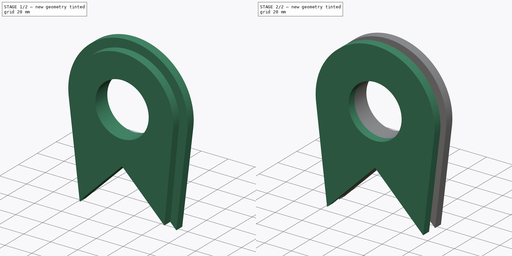
[diagram: build sequence overview — one tinted view per stage of 2, left to right]
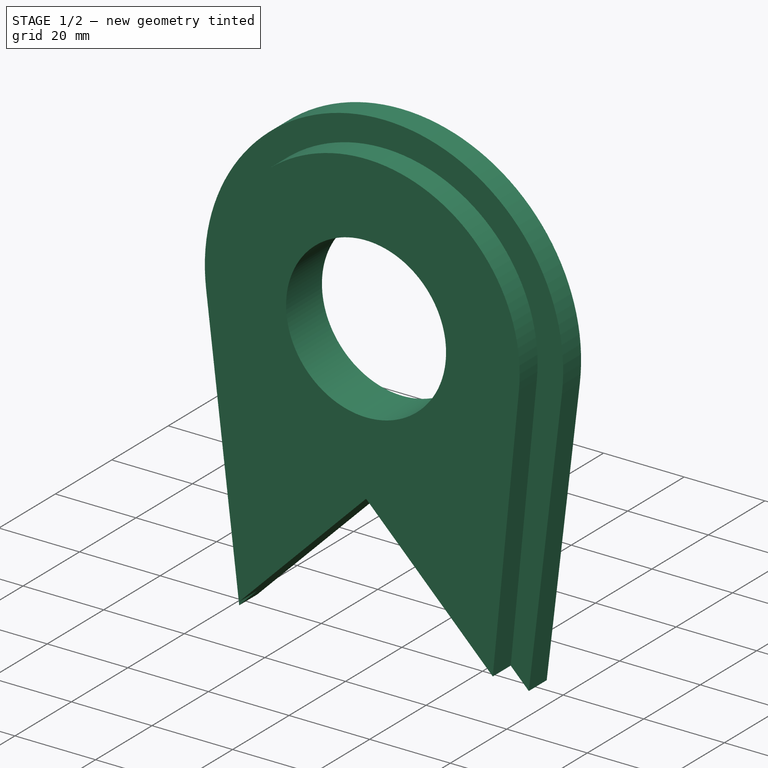
[diagram: stage 1 of 2 — iso view after this stage's code; geometry added in this stage tinted green]
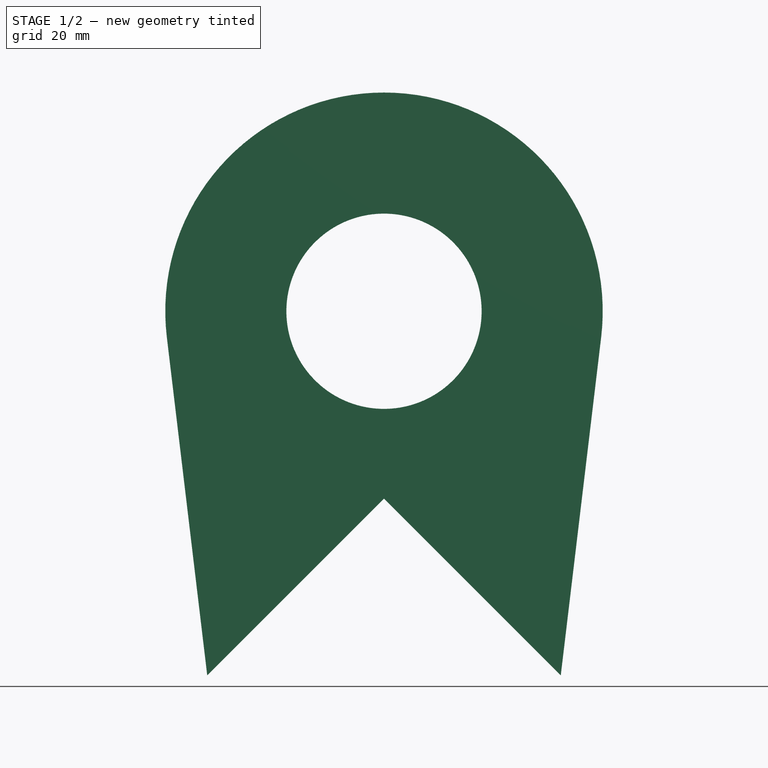
[diagram: stage 1 of 2 — front view after this stage's code; geometry added in this stage tinted green]
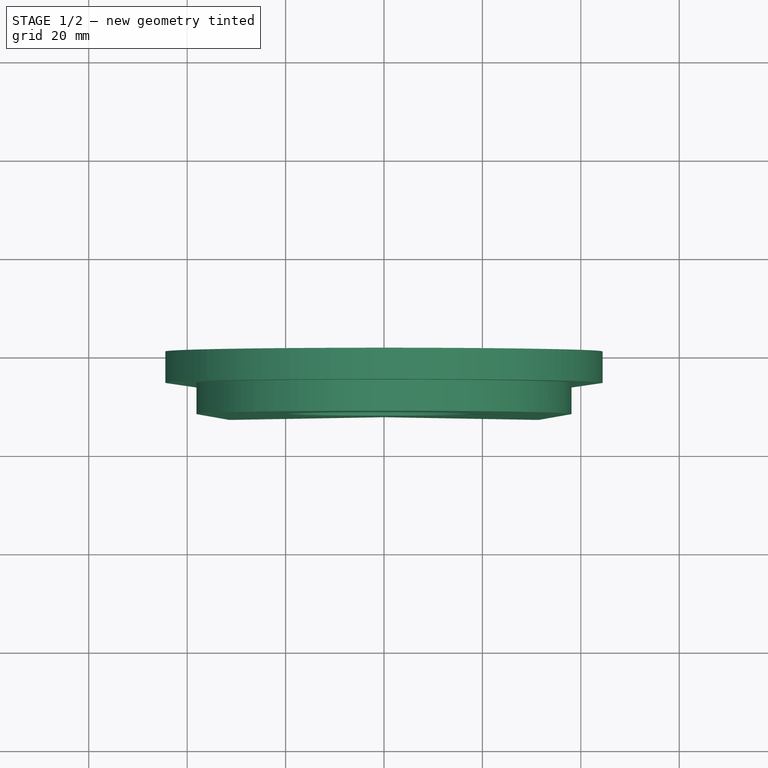
[diagram: stage 1 of 2 — top view after this stage's code; geometry added in this stage tinted green]
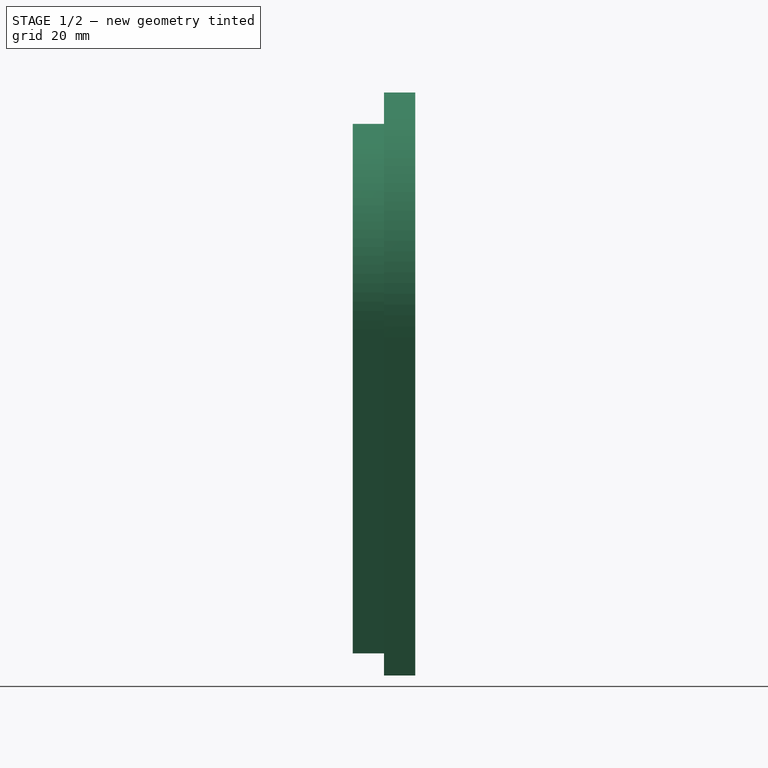
[diagram: stage 1 of 2 — right view after this stage's code; geometry added in this stage tinted green]
FCSTD DOCUMENT  (FreeCAD 0.17R13387 (Git))
Label: Cylinder rod mount
License: CreativeCommons Attribution
LicenseURL: http://creativecommons.org/licenses/by/4.0/
objects: Sketcher::SketchObject×2, PartDesign::Pad×2, PartDesign::Plane×1, PartDesign::LinearPattern×1, PartDesign::Body×1
note: 9 computed .brp shape members not serialized (recipe doc carries the construction recipe); baked Part::Feature solids carry a one-line shape summary decoded from their .brp

FEATURE [Sketcher::SketchObject] Sketch
  MapMode = 5
  Placement = pos=(0,0,0) rot=(1,0,0;1.5708rad)
  sketch-geometry (6):
    g0: ArcOfCircle CenterX=0 CenterY=38.1 CenterZ=0 NormalX=0 NormalY=0 NormalZ=1 AngleXU=0 Radius=44.45 StartAngle=6.16425 EndAngle=9.54371
    g1: Circle CenterX=0 CenterY=38.1 CenterZ=0 NormalX=0 NormalY=0 NormalZ=1 AngleXU=0 Radius=19.8438
    g2: LineSegment StartX=-35.921 StartY=-35.921 StartZ=0 EndX=0 EndY=0 EndZ=0
    g3: LineSegment StartX=0 StartY=0 StartZ=0 EndX=35.921 EndY=-35.921 EndZ=0
    g4: LineSegment StartX=35.921 StartY=-35.921 StartZ=0 EndX=44.136 EndY=32.8259 EndZ=0
    g5: LineSegment StartX=-44.136 StartY=32.8259 StartZ=0 EndX=-35.921 EndY=-35.921 EndZ=0
  constraints (15):
    c: Radius(g1) = 19.8438
    c: Coincident(g0,g1)
    c: PointOnObject(g0,g-2)
    c: Coincident(g2,g-1)
    c: Coincident(g2,g3)
    c: Coincident(g3,g4)
    c: Coincident(g5,g2)
    c: Perpendicular(g3,g2)
    c: Equal(g3,g2)
    c: Distance(g3) = 50.8
    c: DistanceY(g-1,g0) = 38.1
    c: Equal(g5,g4)
    c: Radius(g0) = 44.45
    c: Tangent(g5,g0) = -1.5708
    c: Tangent(g4,g0) = -1.5708
FEATURE [PartDesign::Pad] Pad
  Length = 6.35
  Length2 = 100.076
  Placement = pos=(0,0,0) rot=(1,0,0;1.5708rad)
  Profile = -> Sketch
  Type = 0
FEATURE [PartDesign::Plane] DatumPlane
  MapMode = 5
  Placement = pos=(0,-6.35,0) rot=(1,0,0;1.5708rad)
  Support = -> [Pad]
FEATURE [Sketcher::SketchObject] Sketch001
  MapMode = 5
  Placement = pos=(0,-6.35,0) rot=(1,0,0;1.5708rad)
  Support = -> [DatumPlane]
  sketch-geometry (6):
    g0: ArcOfCircle CenterX=0 CenterY=38.1 CenterZ=0 NormalX=0 NormalY=0 NormalZ=1 AngleXU=0 Radius=38.1 StartAngle=6.18493 EndAngle=9.52303
    g1: Circle CenterX=0 CenterY=38.1 CenterZ=0 NormalX=0 NormalY=0 NormalZ=1 AngleXU=0 Radius=19.8438
    g2: LineSegment StartX=-31.4309 StartY=-31.4309 StartZ=0 EndX=0 EndY=0 EndZ=0
    g3: LineSegment StartX=0 StartY=0 StartZ=0 EndX=31.4309 EndY=-31.4309 EndZ=0
    g4: LineSegment StartX=31.4309 StartY=-31.4309 StartZ=0 EndX=37.9162 EndY=34.3625 EndZ=0
    g5: LineSegment StartX=-37.9162 StartY=34.3625 StartZ=0 EndX=-31.4309 EndY=-31.4309 EndZ=0
  constraints (15):
    c: Radius(g1) = 19.8438
    c: Coincident(g0,g1)
    c: PointOnObject(g0,g-2)
    c: Coincident(g2,g-1)
    c: Coincident(g2,g3)
    c: Coincident(g3,g4)
    c: Coincident(g5,g2)
    c: Perpendicular(g3,g2)
    c: Equal(g3,g2)
    c: Distance(g3) = 44.45
    c: DistanceY(g-1,g0) = 38.1
    c: Equal(g5,g4)
    c: Radius(g0) = 38.1
    c: Tangent(g5,g0) = -1.5708
    c: Tangent(g4,g0) = -1.5708
FEATURE [PartDesign::Pad] Pad001
  BaseFeature = -> Pad
  Length = 6.35
  Length2 = 100.076
  Placement = pos=(0,0,0) rot=(1,0,0;1.5708rad)
  Profile = -> Sketch001
  Type = 0
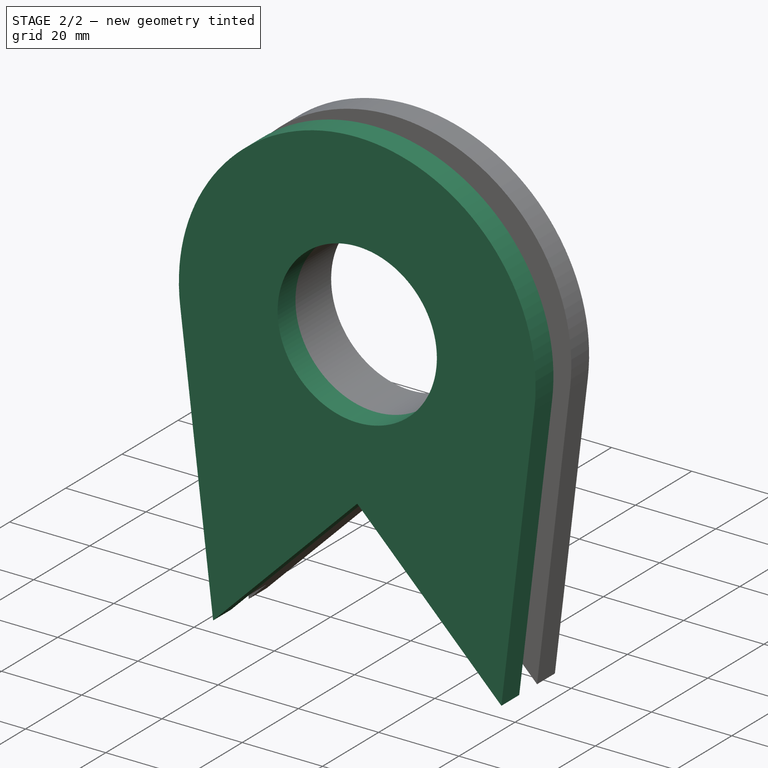
[diagram: stage 2 of 2 — iso view after this stage's code; geometry added in this stage tinted green]
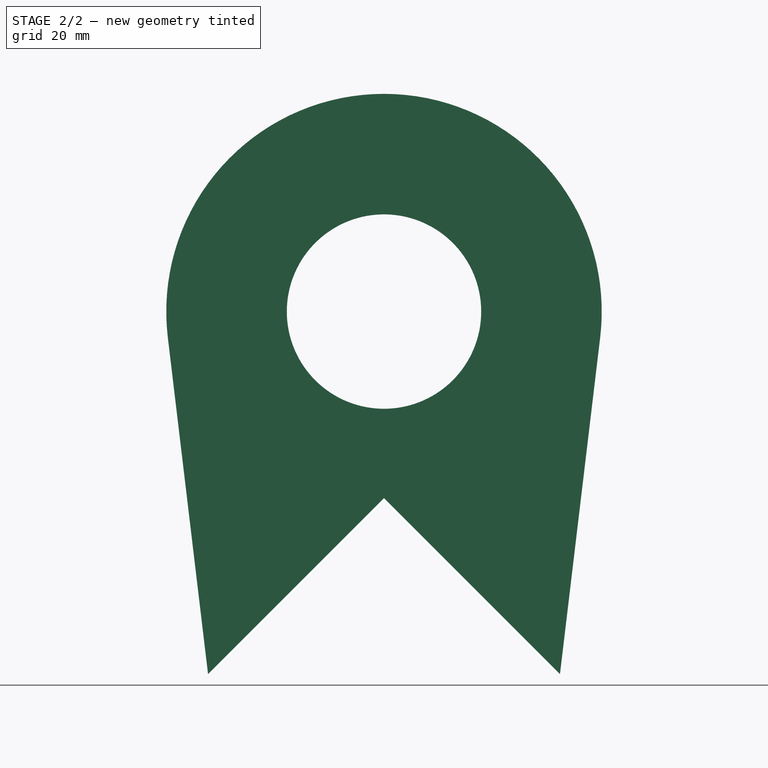
[diagram: stage 2 of 2 — front view after this stage's code; geometry added in this stage tinted green]
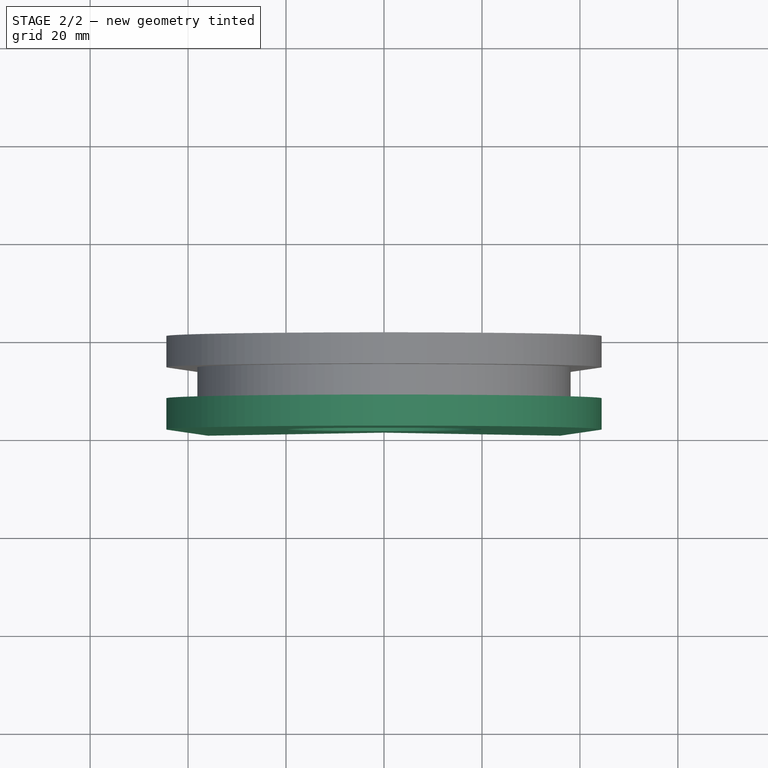
[diagram: stage 2 of 2 — top view after this stage's code; geometry added in this stage tinted green]
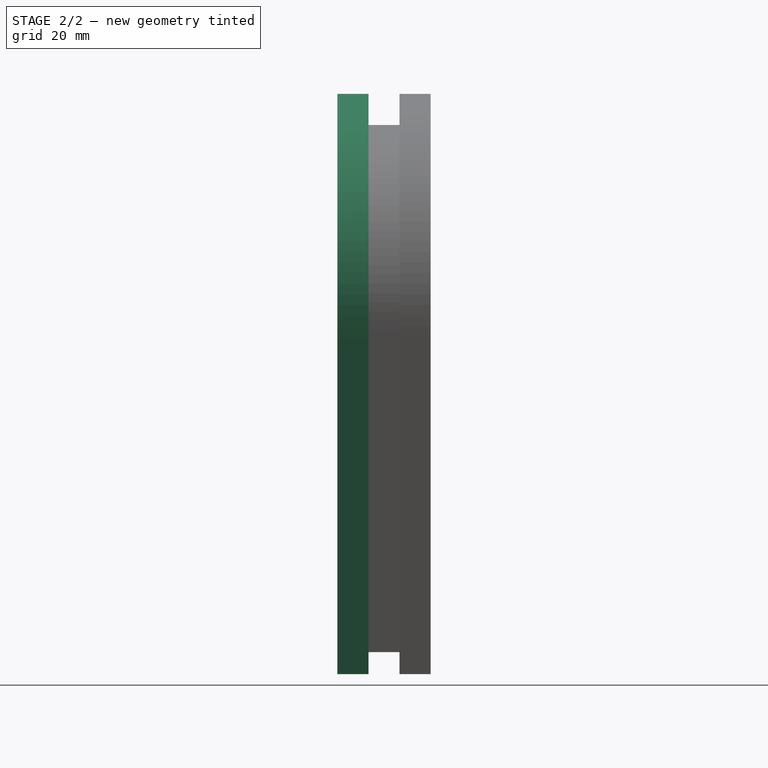
[diagram: stage 2 of 2 — right view after this stage's code; geometry added in this stage tinted green]
FEATURE [PartDesign::LinearPattern] LinearPattern
  BaseFeature = -> Pad001
  Direction = -> Y_Axis
  Length = 12.7
  Occurrences = 2
  Originals = -> [Pad]
  Placement = pos=(0,0,0) rot=(1,0,0;1.5708rad)
  Reversed = true
FEATURE [PartDesign::Body] Body
  Group = -> [Sketch,Pad,DatumPlane,Sketch001,Pad001,LinearPattern]
  Origin = -> Origin
  Tip = -> LinearPattern
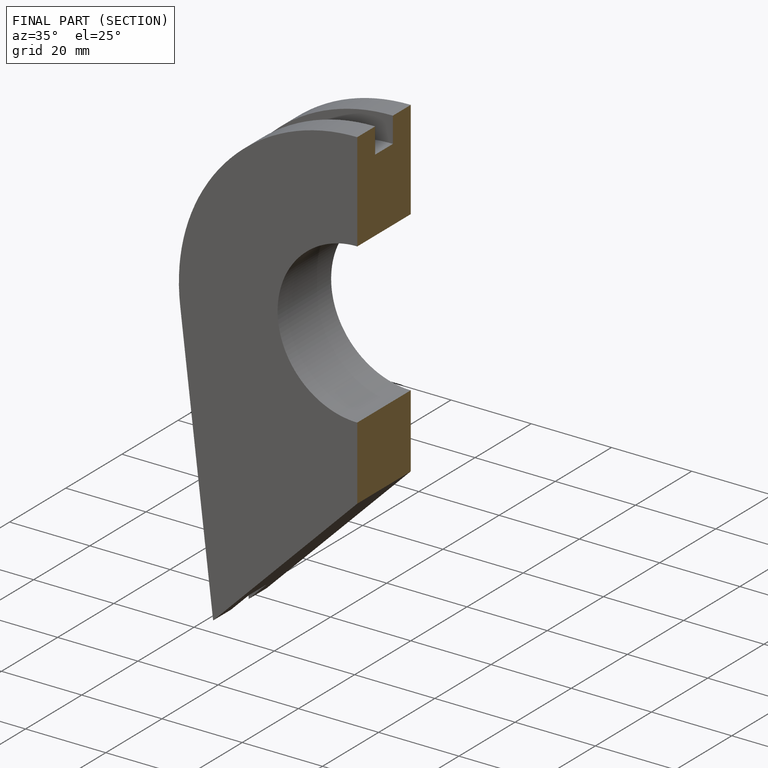
[diagram: finished part — half-section view (interior)]
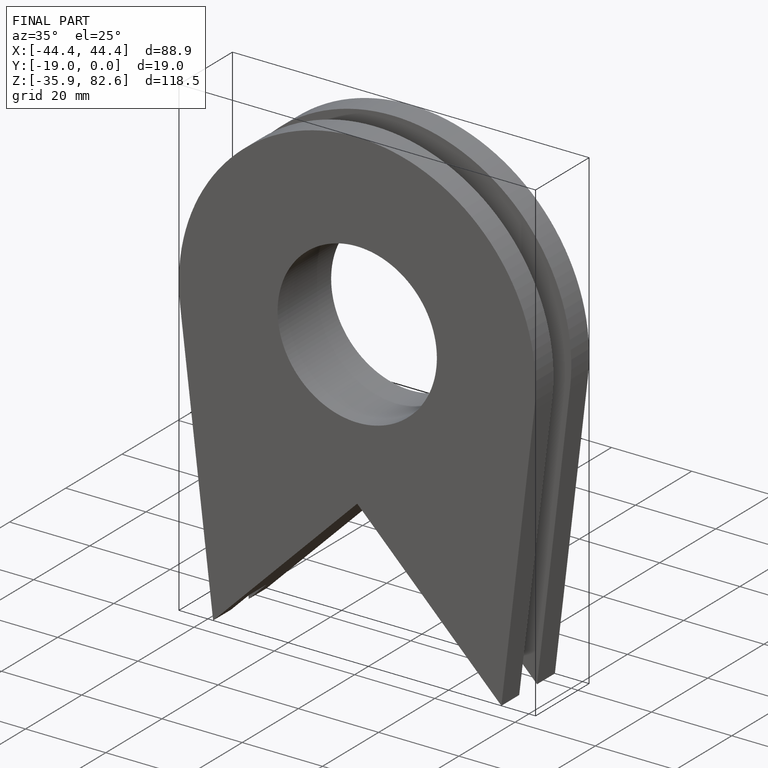
[diagram: finished part — iso view with bounding-box wireframe]
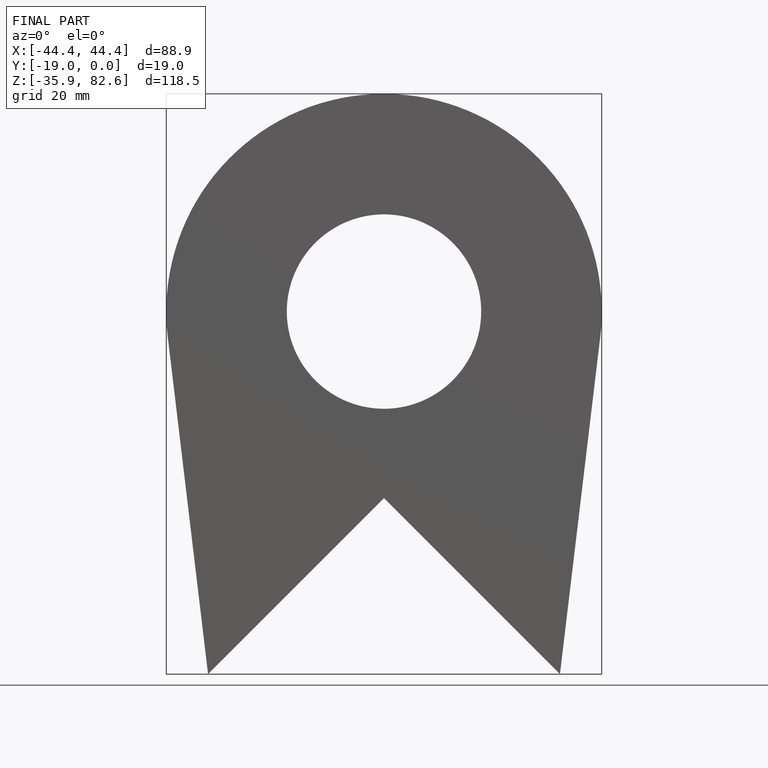
[diagram: finished part — front view with bounding-box wireframe]
